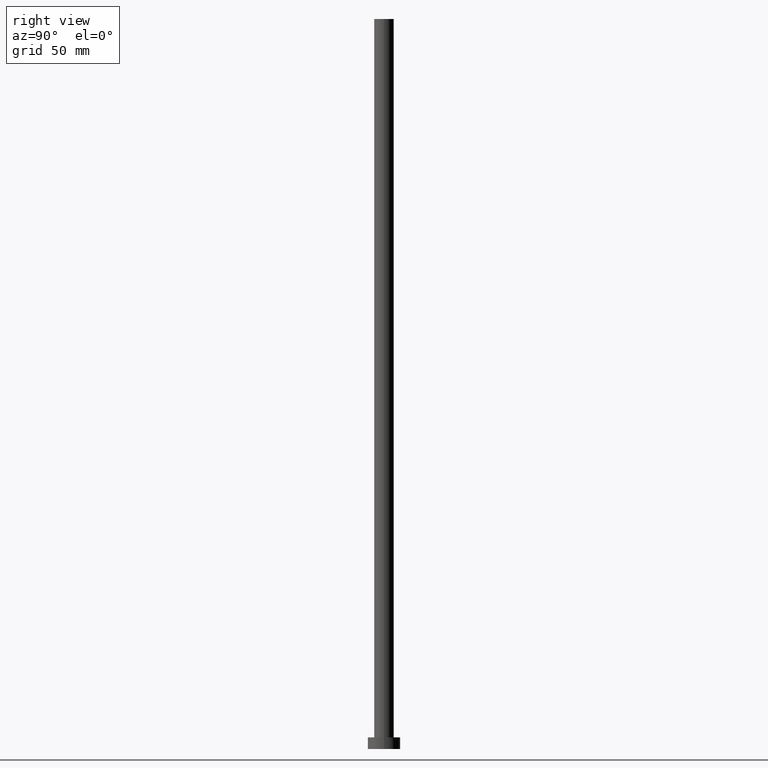
[diagram: clean part render]
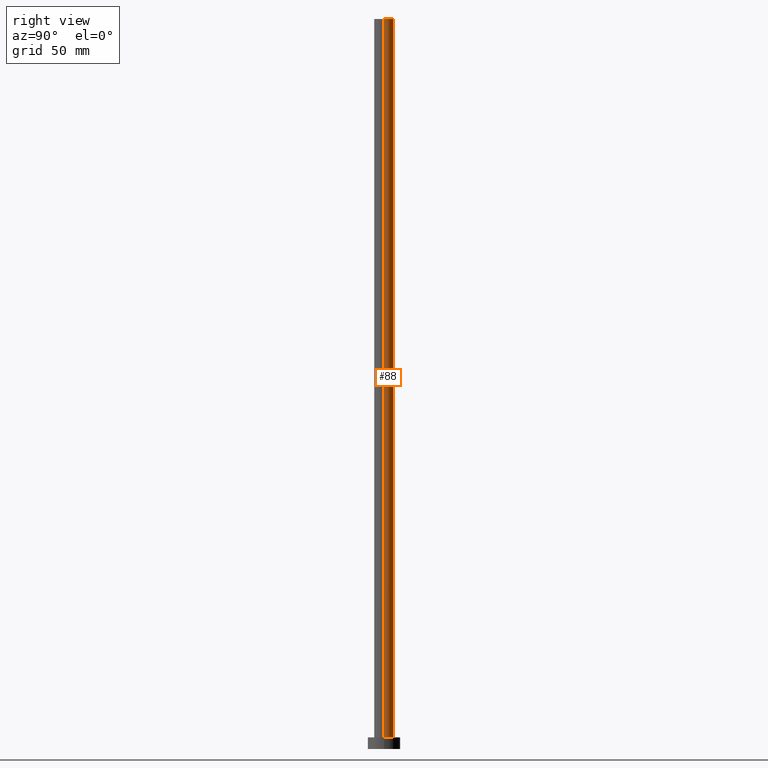
[diagram: same view with one face highlighted and labeled with its STEP entity id]
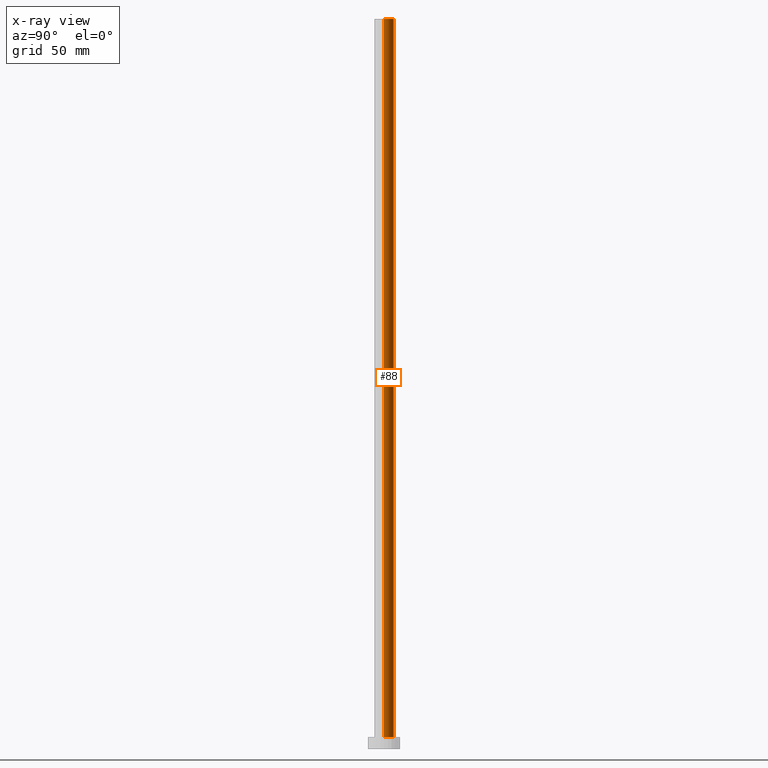
[diagram: x-ray of the same camera — body ghosted, the highlighted face saturated]
A machine part, right view. The second image highlights one B-rep face of the part: STEP entity #88.
The next image is the same camera in x-ray: the body ghosted, the highlighted face saturated — about 0% of this face is hidden behind the body in this view.
In plain terms, the highlighted cylindrical surface (edge-blend (fillet) strip) has radius 4.25 mm, axis along (-0, -0, -1).
Its self-contained STEP definition (entity closure, byte-faithful):
#2 = AXIS2_PLACEMENT_3D ( 'NONE', #101, #44, #168 ) ;
#12 = VERTEX_POINT ( 'NONE', #51 ) ;
#14 = EDGE_CURVE ( 'NONE', #12, #135, #87, .T. ) ;
#19 = CARTESIAN_POINT ( 'NONE',  ( 0.000000000000000000, 0.000000000000000000, 5.000000000000000000 ) ) ;
#40 = CARTESIAN_POINT ( 'NONE',  ( -4.250000000000000000, 0.000000000000000000, 5.000000000000000000 ) ) ;
#44 = DIRECTION ( 'NONE',  ( 0.000000000000000000, 0.000000000000000000, 1.000000000000000000 ) ) ;
#50 = VECTOR ( 'NONE', #134, 1000.000000000000000 ) ;
#51 = CARTESIAN_POINT ( 'NONE',  ( 4.250000000000000000, 5.204748896376250699E-16, 315.0000000000000000 ) ) ;
#55 = ORIENTED_EDGE ( 'NONE', *, *, #14, .F. ) ;
#59 = ORIENTED_EDGE ( 'NONE', *, *, #173, .T. ) ;
#86 = CARTESIAN_POINT ( 'NONE',  ( 0.000000000000000000, 0.000000000000000000, 315.0000000000000000 ) ) ;
#87 = CIRCLE ( 'NONE', #2, 4.250000000000000000 ) ;
#88 = ADVANCED_FACE ( 'NONE', ( #169 ), #214, .T. ) ;
#101 = CARTESIAN_POINT ( 'NONE',  ( 0.000000000000000000, 0.000000000000000000, 315.0000000000000000 ) ) ;
#106 = CARTESIAN_POINT ( 'NONE',  ( 4.250000000000000000, 5.204748896376250699E-16, 315.0000000000000000 ) ) ;
#109 = VECTOR ( 'NONE', #176, 1000.000000000000000 ) ;
#128 = CARTESIAN_POINT ( 'NONE',  ( -4.250000000000000000, 0.000000000000000000, 315.0000000000000000 ) ) ;
#131 = EDGE_LOOP ( 'NONE', ( #55, #222, #59, #157 ) ) ;
#134 = DIRECTION ( 'NONE',  ( -0.000000000000000000, -0.000000000000000000, -1.000000000000000000 ) ) ;
#135 = VERTEX_POINT ( 'NONE', #241 ) ;
#136 = DIRECTION ( 'NONE',  ( 0.000000000000000000, 0.000000000000000000, 1.000000000000000000 ) ) ;
#140 = EDGE_CURVE ( 'NONE', #12, #181, #174, .T. ) ;
#148 = AXIS2_PLACEMENT_3D ( 'NONE', #19, #136, #179 ) ;
#153 = CARTESIAN_POINT ( 'NONE',  ( 4.250000000000000000, 5.204748896376250699E-16, 5.000000000000000000 ) ) ;
#157 = ORIENTED_EDGE ( 'NONE', *, *, #170, .F. ) ;
#168 = DIRECTION ( 'NONE',  ( 1.000000000000000000, 0.000000000000000000, 0.000000000000000000 ) ) ;
#169 = FACE_OUTER_BOUND ( 'NONE', #131, .T. ) ;
#170 = EDGE_CURVE ( 'NONE', #135, #198, #221, .T. ) ;
#172 = DIRECTION ( 'NONE',  ( -0.000000000000000000, -0.000000000000000000, -1.000000000000000000 ) ) ;
#173 = EDGE_CURVE ( 'NONE', #181, #198, #230, .T. ) ;
#174 = LINE ( 'NONE', #106, #109 ) ;
#175 = AXIS2_PLACEMENT_3D ( 'NONE', #86, #172, #212 ) ;
#176 = DIRECTION ( 'NONE',  ( -0.000000000000000000, -0.000000000000000000, -1.000000000000000000 ) ) ;
#179 = DIRECTION ( 'NONE',  ( 1.000000000000000000, 0.000000000000000000, 0.000000000000000000 ) ) ;
#181 = VERTEX_POINT ( 'NONE', #153 ) ;
#198 = VERTEX_POINT ( 'NONE', #40 ) ;
#212 = DIRECTION ( 'NONE',  ( -1.000000000000000000, 0.000000000000000000, 0.000000000000000000 ) ) ;
#214 = CYLINDRICAL_SURFACE ( 'NONE', #175, 4.250000000000000000 ) ;
#221 = LINE ( 'NONE', #128, #50 ) ;
#222 = ORIENTED_EDGE ( 'NONE', *, *, #140, .T. ) ;
#230 = CIRCLE ( 'NONE', #148, 4.250000000000000000 ) ;
#241 = CARTESIAN_POINT ( 'NONE',  ( -4.250000000000000000, 0.000000000000000000, 315.0000000000000000 ) ) ;